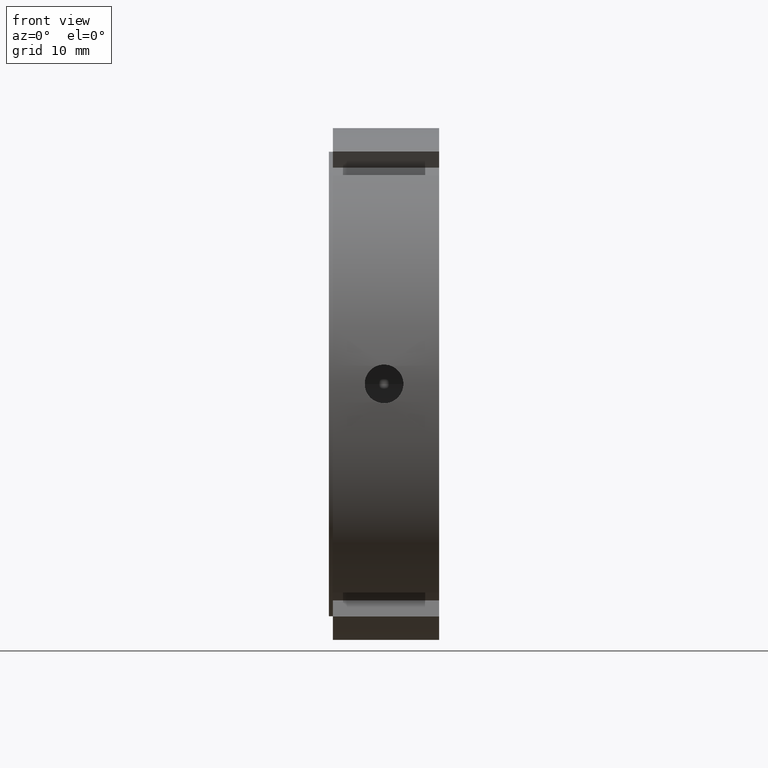
[diagram: clean part render]
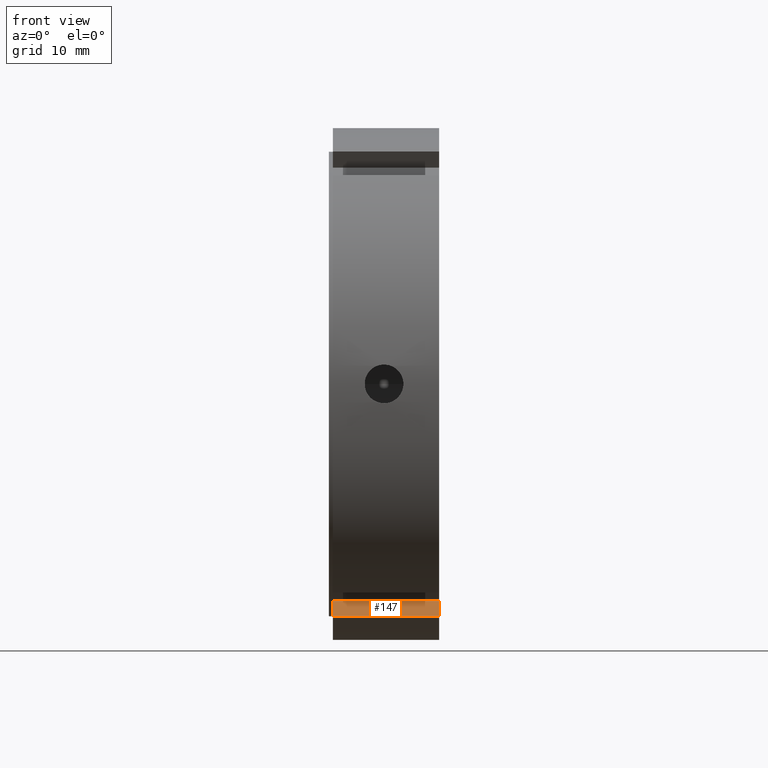
[diagram: same view with one face highlighted and labeled with its STEP entity id]
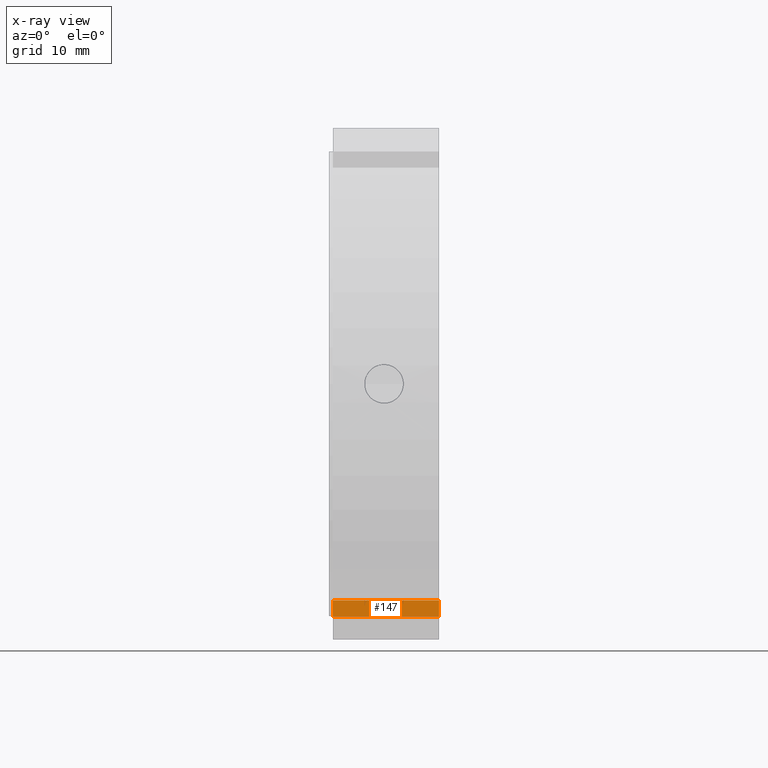
[diagram: x-ray of the same camera — body ghosted, the highlighted face saturated]
A machine part, front view. The second image highlights one B-rep face of the part: STEP entity #147.
The next image is the same camera in x-ray: the body ghosted, the highlighted face saturated — about 0% of this face is hidden behind the body in this view.
In plain terms, the highlighted planar face has unit normal (0, 0.866, -0.5).
Its self-contained STEP definition (entity closure, byte-faithful):
#108=CARTESIAN_POINT('',(13.999999999999995,-13.651923788646702,-29.645825622994252));
#109=DIRECTION('',(0.0,0.866025403784438,-0.500000000000001));
#110=DIRECTION('',(1.0,0.0,0.0));
#111=AXIS2_PLACEMENT_3D('',#108,#109,#110);
#112=PLANE('',#111);
#113=CARTESIAN_POINT('',(0.499999999999994,-13.582544913931105,-29.525657887014884));
#114=VERTEX_POINT('',#113);
#115=CARTESIAN_POINT('',(0.499999999999994,-12.401923788646702,-27.480762113533153));
#116=VERTEX_POINT('',#115);
#117=CARTESIAN_POINT('',(0.499999999999993,-13.582544913931113,-29.525657887014891));
#118=DIRECTION('',(0.0,0.500000000000001,0.866025403784438));
#119=VECTOR('',#118,2.361242250568808);
#120=LINE('',#117,#119);
#121=EDGE_CURVE('',#114,#116,#120,.T.);
#122=ORIENTED_EDGE('',*,*,#121,.F.);
#123=CARTESIAN_POINT('',(13.999999999999995,-13.582544913931107,-29.525657887014887));
#124=VERTEX_POINT('',#123);
#125=CARTESIAN_POINT('',(13.999999999999995,-13.582544913931107,-29.525657887014887));
#126=DIRECTION('',(-1.0,0.0,0.0));
#127=VECTOR('',#126,13.500000000000000);
#128=LINE('',#125,#127);
#129=EDGE_CURVE('',#124,#114,#128,.T.);
#130=ORIENTED_EDGE('',*,*,#129,.F.);
#131=CARTESIAN_POINT('',(13.999999999999995,-12.401923788646702,-27.480762113533153));
#132=VERTEX_POINT('',#131);
#133=CARTESIAN_POINT('',(13.999999999999995,-12.401923788646705,-27.480762113533160));
#134=DIRECTION('',(0.0,-0.500000000000000,-0.866025403784438));
#135=VECTOR('',#134,2.361242250568819);
#136=LINE('',#133,#135);
#137=EDGE_CURVE('',#132,#124,#136,.T.);
#138=ORIENTED_EDGE('',*,*,#137,.F.);
#139=CARTESIAN_POINT('',(13.999999999999995,-12.401923788646702,-27.480762113533153));
#140=DIRECTION('',(-1.0,0.0,0.0));
#141=VECTOR('',#140,13.500000000000000);
#142=LINE('',#139,#141);
#143=EDGE_CURVE('',#132,#116,#142,.T.);
#144=ORIENTED_EDGE('',*,*,#143,.T.);
#145=EDGE_LOOP('',(#122,#130,#138,#144));
#146=FACE_OUTER_BOUND('',#145,.T.);
#147=ADVANCED_FACE('',(#146),#112,.F.);